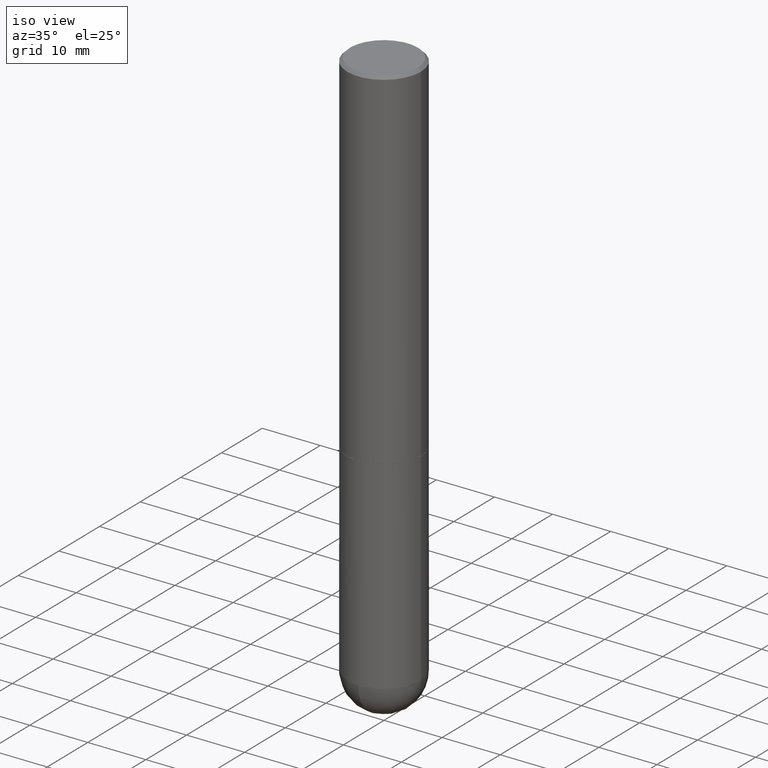
[diagram: clean part render]
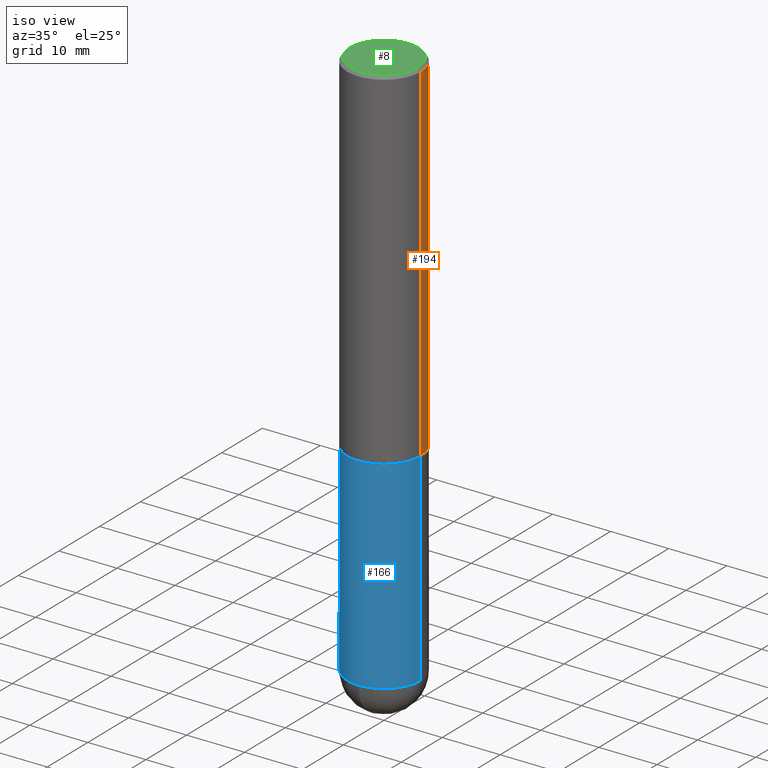
[diagram: same view with three faces highlighted in distinct colors, each labeled with its STEP entity id]
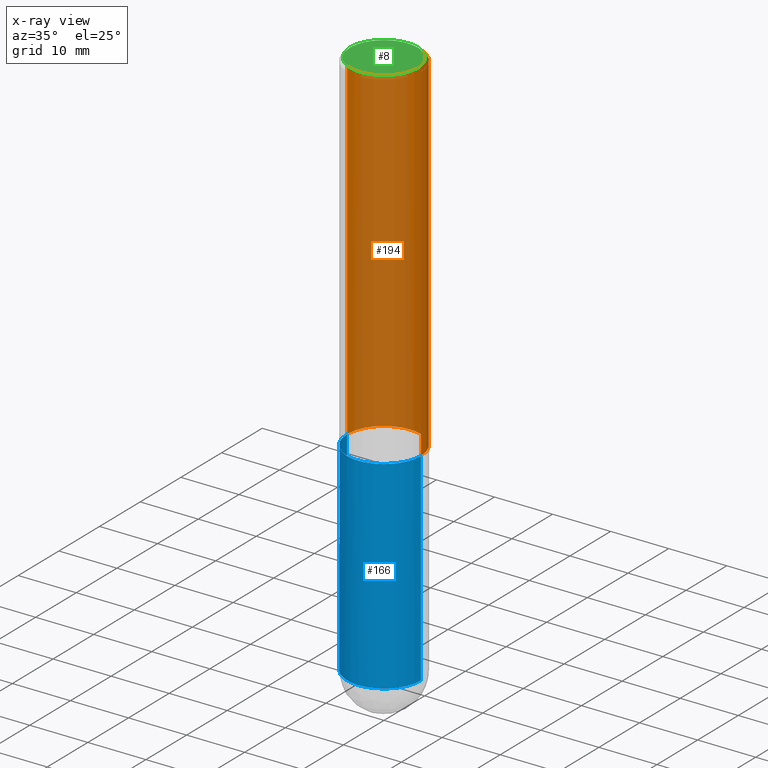
[diagram: x-ray of the same camera — body ghosted, the three highlighted faces saturated]
A machine part, iso view with three faces highlighted in distinct colors.
The next image is the same camera in x-ray (body ghosted, the three faces saturated) — at least one of them is partly hidden behind the body in this view.
Their STEP definitions:

[orange] entity #194 — the highlighted cylindrical surface (partial cylindrical patch) has radius 6.35 mm, axis along (-0, 0, 1).
#4 = DIRECTION ( 'NONE',  ( -2.445468806185136877E-29, 3.491481338843145188E-15, 1.000000000000000000 ) ) ;
#22 = CARTESIAN_POINT ( 'NONE',  ( 0.2500000000000000000, -1.784954126219746189E-15, -0.02000000000000005593 ) ) ;
#31 = CARTESIAN_POINT ( 'NONE',  ( 0.2500000000000001110, -1.745740669421567664E-15, 1.219044193948984649E-29 ) ) ;
#42 = EDGE_CURVE ( 'NONE', #370, #277, #146, .T. ) ;
#57 = ORIENTED_EDGE ( 'NONE', *, *, #143, .F. ) ;
#59 = ORIENTED_EDGE ( 'NONE', *, *, #114, .T. ) ;
#65 = AXIS2_PLACEMENT_3D ( 'NONE', #163, #268, #391 ) ;
#68 = DIRECTION ( 'NONE',  ( -2.445468806185136877E-29, 3.491481338843145188E-15, 1.000000000000000000 ) ) ;
#78 = AXIS2_PLACEMENT_3D ( 'NONE', #100, #221, #347 ) ;
#92 = DIRECTION ( 'NONE',  ( -2.445468806185136597E-29, 3.491481338843145583E-15, 1.000000000000000000 ) ) ;
#100 = CARTESIAN_POINT ( 'NONE',  ( 5.805542945883513814E-29, -8.288776698413627111E-15, -2.373999999999999666 ) ) ;
#104 = EDGE_CURVE ( 'NONE', #152, #243, #230, .T. ) ;
#114 = EDGE_CURVE ( 'NONE', #243, #277, #162, .T. ) ;
#125 = LINE ( 'NONE', #31, #244 ) ;
#129 = CARTESIAN_POINT ( 'NONE',  ( 0.2500000000000002220, -1.003451736783519537E-14, -2.373999999999999666 ) ) ;
#133 = AXIS2_PLACEMENT_3D ( 'NONE', #192, #92, #279 ) ;
#137 = FACE_OUTER_BOUND ( 'NONE', #400, .T. ) ;
#143 = EDGE_CURVE ( 'NONE', #152, #370, #125, .T. ) ;
#146 = CIRCLE ( 'NONE', #133, 0.2500000000000000000 ) ;
#152 = VERTEX_POINT ( 'NONE', #129 ) ;
#162 = LINE ( 'NONE', #286, #237 ) ;
#163 = CARTESIAN_POINT ( 'NONE',  ( 0.000000000000000000, 0.000000000000000000, 0.000000000000000000 ) ) ;
#187 = ORIENTED_EDGE ( 'NONE', *, *, #104, .T. ) ;
#192 = CARTESIAN_POINT ( 'NONE',  ( 4.890937612370287172E-31, -6.982962677686310098E-17, -0.02000000000000005593 ) ) ;
#194 = ADVANCED_FACE ( 'NONE', ( #137 ), #223, .T. ) ;
#221 = DIRECTION ( 'NONE',  ( -2.445468806185136597E-29, 3.491481338843145583E-15, 1.000000000000000000 ) ) ;
#223 = CYLINDRICAL_SURFACE ( 'NONE', #65, 0.2500000000000001110 ) ;
#230 = CIRCLE ( 'NONE', #78, 0.2500000000000002220 ) ;
#237 = VECTOR ( 'NONE', #68, 39.37007874015748143 ) ;
#242 = ORIENTED_EDGE ( 'NONE', *, *, #42, .F. ) ;
#243 = VERTEX_POINT ( 'NONE', #329 ) ;
#244 = VECTOR ( 'NONE', #4, 39.37007874015748143 ) ;
#268 = DIRECTION ( 'NONE',  ( -2.445468806185136597E-29, 3.491481338843145583E-15, 1.000000000000000000 ) ) ;
#277 = VERTEX_POINT ( 'NONE', #363 ) ;
#279 = DIRECTION ( 'NONE',  ( 1.000000000000000000, -6.982962677686266711E-15, 0.000000000000000000 ) ) ;
#286 = CARTESIAN_POINT ( 'NONE',  ( -0.2500000000000001110, 1.776356839400251254E-15, -1.229733772563727146E-29 ) ) ;
#329 = CARTESIAN_POINT ( 'NONE',  ( -0.2500000000000002220, -2.402946323194990795E-15, -2.373999999999999666 ) ) ;
#347 = DIRECTION ( 'NONE',  ( 1.000000000000000000, -6.982962677686264344E-15, 0.000000000000000000 ) ) ;
#363 = CARTESIAN_POINT ( 'NONE',  ( -0.2500000000000000000, 1.675911042644703577E-15, -0.02000000000000005593 ) ) ;
#370 = VERTEX_POINT ( 'NONE', #22 ) ;
#391 = DIRECTION ( 'NONE',  ( 1.000000000000000000, -6.982962677686267499E-15, 4.876176775795936353E-29 ) ) ;
#400 = EDGE_LOOP ( 'NONE', ( #187, #59, #242, #57 ) ) ;

[blue] entity #166 — the highlighted cylindrical surface (partial cylindrical patch) has radius 6.35 mm, axis along (-0, 0, 1).
#21 = VERTEX_POINT ( 'NONE', #189 ) ;
#43 = DIRECTION ( 'NONE',  ( 1.000000000000000000, -6.982962677686262766E-15, 0.000000000000000000 ) ) ;
#53 = VERTEX_POINT ( 'NONE', #63 ) ;
#55 = EDGE_LOOP ( 'NONE', ( #411, #212, #247, #309, #397 ) ) ;
#63 = CARTESIAN_POINT ( 'NONE',  ( -0.2500000000000000000, -8.916304760806884090E-15, -2.375000000000000000 ) ) ;
#73 = LINE ( 'NONE', #296, #394 ) ;
#82 = VERTEX_POINT ( 'NONE', #410 ) ;
#102 = CYLINDRICAL_SURFACE ( 'NONE', #281, 0.2500000000000000000 ) ;
#108 = LINE ( 'NONE', #392, #182 ) ;
#109 = DIRECTION ( 'NONE',  ( -2.445468806185136597E-29, 3.491481338843145583E-15, 1.000000000000000000 ) ) ;
#112 = CARTESIAN_POINT ( 'NONE',  ( -0.2500000000000000000, -8.916304760806885668E-15, -3.750000000000000000 ) ) ;
#132 = DIRECTION ( 'NONE',  ( -2.445468806185136597E-29, 3.491481338843145583E-15, 1.000000000000000000 ) ) ;
#139 = DIRECTION ( 'NONE',  ( 1.000000000000000000, -6.982962677686262766E-15, 0.000000000000000000 ) ) ;
#147 = CIRCLE ( 'NONE', #405, 0.2500000000000000000 ) ;
#161 = AXIS2_PLACEMENT_3D ( 'NONE', #272, #387, #43 ) ;
#166 = ADVANCED_FACE ( 'NONE', ( #254 ), #102, .T. ) ;
#170 = CARTESIAN_POINT ( 'NONE',  ( 9.170508023194262238E-29, -1.309305502066179741E-14, -3.750000000000000000 ) ) ;
#173 = DIRECTION ( 'NONE',  ( -2.445468806185136877E-29, 3.491481338843145188E-15, 1.000000000000000000 ) ) ;
#182 = VECTOR ( 'NONE', #173, 39.37007874015748143 ) ;
#189 = CARTESIAN_POINT ( 'NONE',  ( 0.2500000000000000000, -1.243840226962870281E-14, -3.750000000000000000 ) ) ;
#191 = EDGE_CURVE ( 'NONE', #217, #82, #298, .T. ) ;
#204 = DIRECTION ( 'NONE',  ( -2.445468806185136877E-29, 3.491481338843145188E-15, 1.000000000000000000 ) ) ;
#212 = ORIENTED_EDGE ( 'NONE', *, *, #191, .T. ) ;
#217 = VERTEX_POINT ( 'NONE', #112 ) ;
#222 = CARTESIAN_POINT ( 'NONE',  ( 0.000000000000000000, 0.000000000000000000, 0.000000000000000000 ) ) ;
#228 = DIRECTION ( 'NONE',  ( 1.000000000000000000, -6.982962677686270655E-15, 0.000000000000000000 ) ) ;
#233 = EDGE_CURVE ( 'NONE', #82, #21, #389, .T. ) ;
#239 = EDGE_CURVE ( 'NONE', #217, #53, #108, .T. ) ;
#247 = ORIENTED_EDGE ( 'NONE', *, *, #233, .T. ) ;
#254 = FACE_OUTER_BOUND ( 'NONE', #55, .T. ) ;
#261 = DIRECTION ( 'NONE',  ( 1.000000000000000000, -6.982962677686266711E-15, 4.876176775795935793E-29 ) ) ;
#272 = CARTESIAN_POINT ( 'NONE',  ( 9.170508023194262238E-29, -1.309305502066179741E-14, -3.750000000000000000 ) ) ;
#281 = AXIS2_PLACEMENT_3D ( 'NONE', #222, #348, #261 ) ;
#296 = CARTESIAN_POINT ( 'NONE',  ( 0.2500000000000000000, -1.745740669421566678E-15, 1.219044193948983948E-29 ) ) ;
#298 = CIRCLE ( 'NONE', #336, 0.2500000000000000000 ) ;
#309 = ORIENTED_EDGE ( 'NONE', *, *, #314, .T. ) ;
#314 = EDGE_CURVE ( 'NONE', #21, #343, #73, .T. ) ;
#332 = EDGE_CURVE ( 'NONE', #53, #343, #147, .T. ) ;
#336 = AXIS2_PLACEMENT_3D ( 'NONE', #170, #132, #139 ) ;
#343 = VERTEX_POINT ( 'NONE', #359 ) ;
#348 = DIRECTION ( 'NONE',  ( -2.445468806185136597E-29, 3.491481338843145583E-15, 1.000000000000000000 ) ) ;
#359 = CARTESIAN_POINT ( 'NONE',  ( 0.2500000000000000000, -1.003800884917403837E-14, -2.375000000000000000 ) ) ;
#387 = DIRECTION ( 'NONE',  ( -2.445468806185136597E-29, 3.491481338843145583E-15, 1.000000000000000000 ) ) ;
#389 = CIRCLE ( 'NONE', #161, 0.2500000000000000000 ) ;
#390 = CARTESIAN_POINT ( 'NONE',  ( 5.807988414689699417E-29, -8.292268179752470118E-15, -2.375000000000000000 ) ) ;
#392 = CARTESIAN_POINT ( 'NONE',  ( -0.2500000000000000000, 1.776356839400250465E-15, -1.229733772563726445E-29 ) ) ;
#394 = VECTOR ( 'NONE', #204, 39.37007874015748143 ) ;
#397 = ORIENTED_EDGE ( 'NONE', *, *, #332, .F. ) ;
#405 = AXIS2_PLACEMENT_3D ( 'NONE', #390, #109, #228 ) ;
#410 = CARTESIAN_POINT ( 'NONE',  ( -1.776356839400160732E-15, -0.2500000000000133782, -3.749999999999999112 ) ) ;
#411 = ORIENTED_EDGE ( 'NONE', *, *, #239, .F. ) ;

[green] entity #8 — the highlighted planar face has unit normal (0, -0, -1).
#8 = ADVANCED_FACE ( 'NONE', ( #51 ), #89, .F. ) ;
#19 = DIRECTION ( 'NONE',  ( 2.438088387897960049E-29, -3.491481338843145188E-15, -1.000000000000000000 ) ) ;
#24 = VERTEX_POINT ( 'NONE', #155 ) ;
#44 = DIRECTION ( 'NONE',  ( 1.000000000000000000, -6.982962677686267499E-15, 4.875813741439101456E-29 ) ) ;
#51 = FACE_OUTER_BOUND ( 'NONE', #317, .T. ) ;
#84 = VERTEX_POINT ( 'NONE', #124 ) ;
#89 = PLANE ( 'NONE',  #176 ) ;
#124 = CARTESIAN_POINT ( 'NONE',  ( 0.2299999999999999267, -1.681434332853598617E-15, 5.122214988121642930E-17 ) ) ;
#134 = CIRCLE ( 'NONE', #380, 0.2299999999999999267 ) ;
#155 = CARTESIAN_POINT ( 'NONE',  ( -0.2299999999999999267, 1.640996229256272519E-15, 5.122214988119358314E-17 ) ) ;
#160 = AXIS2_PLACEMENT_3D ( 'NONE', #205, #172, #44 ) ;
#165 = DIRECTION ( 'NONE',  ( -2.445468806185136597E-29, 3.491481338843145583E-15, 1.000000000000000000 ) ) ;
#172 = DIRECTION ( 'NONE',  ( -2.445468806185136597E-29, 3.491481338843145583E-15, 1.000000000000000000 ) ) ;
#175 = EDGE_CURVE ( 'NONE', #84, #24, #181, .T. ) ;
#176 = AXIS2_PLACEMENT_3D ( 'NONE', #308, #19, #335 ) ;
#180 = ORIENTED_EDGE ( 'NONE', *, *, #300, .T. ) ;
#181 = CIRCLE ( 'NONE', #160, 0.2299999999999999267 ) ;
#205 = CARTESIAN_POINT ( 'NONE',  ( -1.252621697202263706E-45, 1.788411804456536750E-31, 5.122214988120493535E-17 ) ) ;
#266 = DIRECTION ( 'NONE',  ( 1.000000000000000000, -6.982962677686267499E-15, 4.875813741439101456E-29 ) ) ;
#300 = EDGE_CURVE ( 'NONE', #24, #84, #134, .T. ) ;
#308 = CARTESIAN_POINT ( 'NONE',  ( 1.606081415867840870E-15, 0.2299999999999999267, -7.774296329933208332E-16 ) ) ;
#317 = EDGE_LOOP ( 'NONE', ( #180, #339 ) ) ;
#322 = CARTESIAN_POINT ( 'NONE',  ( -1.252621697202263706E-45, 1.788411804456536750E-31, 5.122214988120493535E-17 ) ) ;
#335 = DIRECTION ( 'NONE',  ( -1.000000000000000000, 6.982962677686265922E-15, -4.876176775795935793E-29 ) ) ;
#339 = ORIENTED_EDGE ( 'NONE', *, *, #175, .T. ) ;
#380 = AXIS2_PLACEMENT_3D ( 'NONE', #322, #165, #266 ) ;